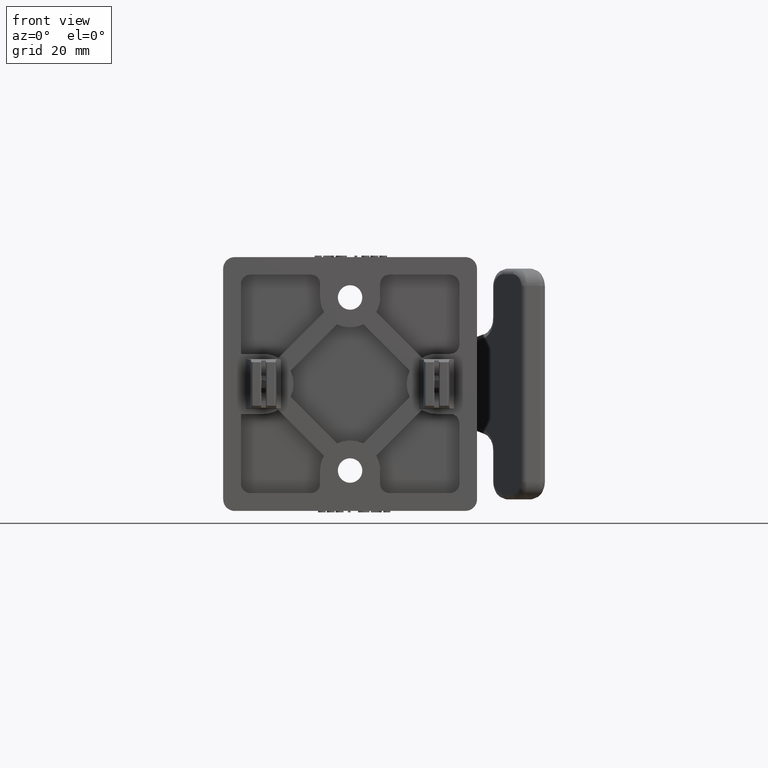
[diagram: clean part render]
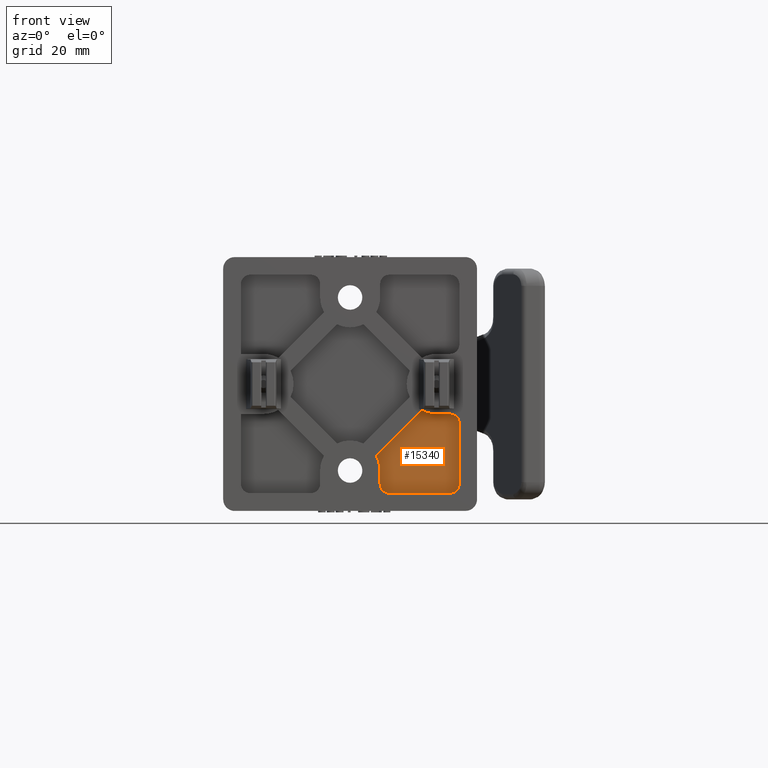
[diagram: same view with one face highlighted and labeled with its STEP entity id]
A machine part, front view. The second image highlights one B-rep face of the part: STEP entity #15340.
In plain terms, the highlighted planar face has unit normal (0, -1, 0).
Its self-contained STEP definition (entity closure, byte-faithful):
#792 = ORIENTED_EDGE ( 'NONE', *, *, #49225, .T. ) ;
#793 = ORIENTED_EDGE ( 'NONE', *, *, #49244, .T. ) ;
#794 = ORIENTED_EDGE ( 'NONE', *, *, #49242, .T. ) ;
#795 = ORIENTED_EDGE ( 'NONE', *, *, #49240, .T. ) ;
#796 = ORIENTED_EDGE ( 'NONE', *, *, #49238, .T. ) ;
#797 = ORIENTED_EDGE ( 'NONE', *, *, #49236, .T. ) ;
#798 = ORIENTED_EDGE ( 'NONE', *, *, #49234, .T. ) ;
#799 = ORIENTED_EDGE ( 'NONE', *, *, #49232, .T. ) ;
#800 = ORIENTED_EDGE ( 'NONE', *, *, #49230, .T. ) ;
#801 = ORIENTED_EDGE ( 'NONE', *, *, #49228, .T. ) ;
#11016 = CARTESIAN_POINT ( 'NONE',  ( 1.182999999999999400, -0.3120000000000000000, -1.082999999999999300 ) ) ;
#11017 = CARTESIAN_POINT ( 'NONE',  ( 1.082999999999998600, -0.3120000000000000000, -1.182999999999999800 ) ) ;
#11018 = CARTESIAN_POINT ( 'NONE',  ( 0.4250000000000006000, -0.3120000000000000000, -1.182999999999999800 ) ) ;
#11019 = CARTESIAN_POINT ( 'NONE',  ( 0.3249999999999999000, -0.3120000000000000000, -1.082999999999999300 ) ) ;
#11020 = CARTESIAN_POINT ( 'NONE',  ( 0.3249999999999999600, -0.3120000000000000000, -0.9375000000000000000 ) ) ;
#11021 = CARTESIAN_POINT ( 'NONE',  ( 0.2829855804508887300, -0.3120000000000000000, -0.7776745913289331300 ) ) ;
#11022 = CARTESIAN_POINT ( 'NONE',  ( 0.7776745913289329100, -0.3120000000000000000, -0.2829855804508885100 ) ) ;
#11023 = CARTESIAN_POINT ( 'NONE',  ( 0.9375000000000000000, -0.3120000000000000000, -0.3249999999999999600 ) ) ;
#11024 = CARTESIAN_POINT ( 'NONE',  ( 1.082999999999998900, -0.3120000000000000000, -0.3249999999999999600 ) ) ;
#11025 = CARTESIAN_POINT ( 'NONE',  ( 1.182999999999999600, -0.3120000000000000000, -0.4250000000000006600 ) ) ;
#15340 = ADVANCED_FACE ( 'NONE', ( #21553 ), #17939, .T. ) ;
#17937 = CARTESIAN_POINT ( 'NONE',  ( 1.082999999999999300, -0.3120000000000000000, -1.083000000000000000 ) ) ;
#17939 = PLANE ( 'NONE',  #22844 ) ;
#17951 = DIRECTION ( 'NONE',  ( 0.0000000000000000000, -1.000000000000000000, 0.0000000000000000000 ) ) ;
#17953 = DIRECTION ( 'NONE',  ( 0.0000000000000000000, -0.0000000000000000000, -1.000000000000000000 ) ) ;
#21553 = FACE_OUTER_BOUND ( 'NONE', #48585, .T. ) ;
#22844 = AXIS2_PLACEMENT_3D ( 'NONE', #17937, #17951, #17953 ) ;
#23595 = VERTEX_POINT ( 'NONE', #11016 ) ;
#23596 = VERTEX_POINT ( 'NONE', #11017 ) ;
#23597 = VERTEX_POINT ( 'NONE', #11018 ) ;
#23598 = VERTEX_POINT ( 'NONE', #11019 ) ;
#23599 = VERTEX_POINT ( 'NONE', #11020 ) ;
#23600 = VERTEX_POINT ( 'NONE', #11021 ) ;
#23601 = VERTEX_POINT ( 'NONE', #11022 ) ;
#23602 = VERTEX_POINT ( 'NONE', #11023 ) ;
#23603 = VERTEX_POINT ( 'NONE', #11024 ) ;
#23604 = VERTEX_POINT ( 'NONE', #11025 ) ;
#29708 = CIRCLE ( 'NONE', #30126, 0.1000000000000000200 ) ;
#29711 = LINE ( 'NONE', #35681, #29712 ) ;
#29712 = VECTOR ( 'NONE', #35682, 39.37007874015748100 ) ;
#29717 = CIRCLE ( 'NONE', #30120, 0.1000000000000000200 ) ;
#29718 = LINE ( 'NONE', #35690, #29719 ) ;
#29719 = VECTOR ( 'NONE', #35691, 39.37007874015748100 ) ;
#29724 = CIRCLE ( 'NONE', #30130, 0.3249999999999999600 ) ;
#29725 = LINE ( 'NONE', #35699, #29726 ) ;
#29726 = VECTOR ( 'NONE', #35700, 39.37007874015748900 ) ;
#29731 = CIRCLE ( 'NONE', #30131, 0.3249999999999999600 ) ;
#29732 = LINE ( 'NONE', #35708, #29733 ) ;
#29733 = VECTOR ( 'NONE', #35709, 39.37007874015748100 ) ;
#29738 = CIRCLE ( 'NONE', #30132, 0.1000000000000000200 ) ;
#29739 = LINE ( 'NONE', #35717, #29740 ) ;
#29740 = VECTOR ( 'NONE', #35718, 39.37007874015748100 ) ;
#30120 = AXIS2_PLACEMENT_3D ( 'NONE', #35677, #35686, #35687 ) ;
#30126 = AXIS2_PLACEMENT_3D ( 'NONE', #35666, #35675, #35676 ) ;
#30130 = AXIS2_PLACEMENT_3D ( 'NONE', #35674, #35695, #35696 ) ;
#30131 = AXIS2_PLACEMENT_3D ( 'NONE', #35685, #35704, #35705 ) ;
#30132 = AXIS2_PLACEMENT_3D ( 'NONE', #35694, #35713, #35714 ) ;
#35666 = CARTESIAN_POINT ( 'NONE',  ( 1.082999999999999300, -0.3120000000000000000, -1.083000000000000000 ) ) ;
#35674 = CARTESIAN_POINT ( 'NONE',  ( 1.138269997360110100E-017, -0.3120000000000000000, -0.9375000000000000000 ) ) ;
#35675 = DIRECTION ( 'NONE',  ( 0.0000000000000000000, -1.000000000000000000, 0.0000000000000000000 ) ) ;
#35676 = DIRECTION ( 'NONE',  ( 0.0000000000000000000, 0.0000000000000000000, -1.000000000000000000 ) ) ;
#35677 = CARTESIAN_POINT ( 'NONE',  ( 0.4249999999999999300, -0.3120000000000000000, -1.083000000000000000 ) ) ;
#35681 = CARTESIAN_POINT ( 'NONE',  ( 0.4250000000000006000, -0.3120000000000000000, -1.182999999999999800 ) ) ;
#35682 = DIRECTION ( 'NONE',  ( 1.000000000000000000, 0.0000000000000000000, 0.0000000000000000000 ) ) ;
#35685 = CARTESIAN_POINT ( 'NONE',  ( 0.9375000000000000000, -0.3120000000000000000, 0.0000000000000000000 ) ) ;
#35686 = DIRECTION ( 'NONE',  ( 0.0000000000000000000, -1.000000000000000000, 0.0000000000000000000 ) ) ;
#35687 = DIRECTION ( 'NONE',  ( 0.0000000000000000000, 0.0000000000000000000, -1.000000000000000000 ) ) ;
#35690 = CARTESIAN_POINT ( 'NONE',  ( 0.3249999999999999600, -0.3120000000000000000, -0.9375000000000000000 ) ) ;
#35691 = DIRECTION ( 'NONE',  ( -4.693896896330375600E-016, 0.0000000000000000000, -1.000000000000000000 ) ) ;
#35694 = CARTESIAN_POINT ( 'NONE',  ( 1.082999999999999500, -0.3120000000000000000, -0.4249999999999999900 ) ) ;
#35695 = DIRECTION ( 'NONE',  ( -0.0000000000000000000, 1.000000000000000000, -0.0000000000000000000 ) ) ;
#35696 = DIRECTION ( 'NONE',  ( 0.0000000000000000000, 0.0000000000000000000, -1.000000000000000000 ) ) ;
#35699 = CARTESIAN_POINT ( 'NONE',  ( 0.7776745913289329100, -0.3120000000000000000, -0.2829855804508885100 ) ) ;
#35700 = DIRECTION ( 'NONE',  ( -0.7071067811865473500, 0.0000000000000000000, -0.7071067811865476800 ) ) ;
#35704 = DIRECTION ( 'NONE',  ( -0.0000000000000000000, 1.000000000000000000, -0.0000000000000000000 ) ) ;
#35705 = DIRECTION ( 'NONE',  ( 0.0000000000000000000, 0.0000000000000000000, -1.000000000000000000 ) ) ;
#35708 = CARTESIAN_POINT ( 'NONE',  ( 0.9375000000000000000, -0.3120000000000000000, -0.3249999999999999600 ) ) ;
#35709 = DIRECTION ( 'NONE',  ( -1.000000000000000000, -0.0000000000000000000, -0.0000000000000000000 ) ) ;
#35713 = DIRECTION ( 'NONE',  ( 0.0000000000000000000, -1.000000000000000000, 0.0000000000000000000 ) ) ;
#35714 = DIRECTION ( 'NONE',  ( 0.0000000000000000000, 0.0000000000000000000, 1.000000000000000000 ) ) ;
#35717 = CARTESIAN_POINT ( 'NONE',  ( 1.182999999999999400, -0.3120000000000000000, -1.082999999999999300 ) ) ;
#35718 = DIRECTION ( 'NONE',  ( 2.075872335611147200E-016, 0.0000000000000000000, 1.000000000000000000 ) ) ;
#48585 = EDGE_LOOP ( 'NONE', ( #792, #793, #794, #795, #796, #797, #798, #799, #800, #801 ) ) ;
#49225 = EDGE_CURVE ( 'NONE', #23596, #23595, #29708, .T. ) ;
#49228 = EDGE_CURVE ( 'NONE', #23597, #23596, #29711, .T. ) ;
#49230 = EDGE_CURVE ( 'NONE', #23598, #23597, #29717, .T. ) ;
#49232 = EDGE_CURVE ( 'NONE', #23599, #23598, #29718, .T. ) ;
#49234 = EDGE_CURVE ( 'NONE', #23600, #23599, #29724, .T. ) ;
#49236 = EDGE_CURVE ( 'NONE', #23601, #23600, #29725, .T. ) ;
#49238 = EDGE_CURVE ( 'NONE', #23602, #23601, #29731, .T. ) ;
#49240 = EDGE_CURVE ( 'NONE', #23603, #23602, #29732, .T. ) ;
#49242 = EDGE_CURVE ( 'NONE', #23604, #23603, #29738, .T. ) ;
#49244 = EDGE_CURVE ( 'NONE', #23595, #23604, #29739, .T. ) ;